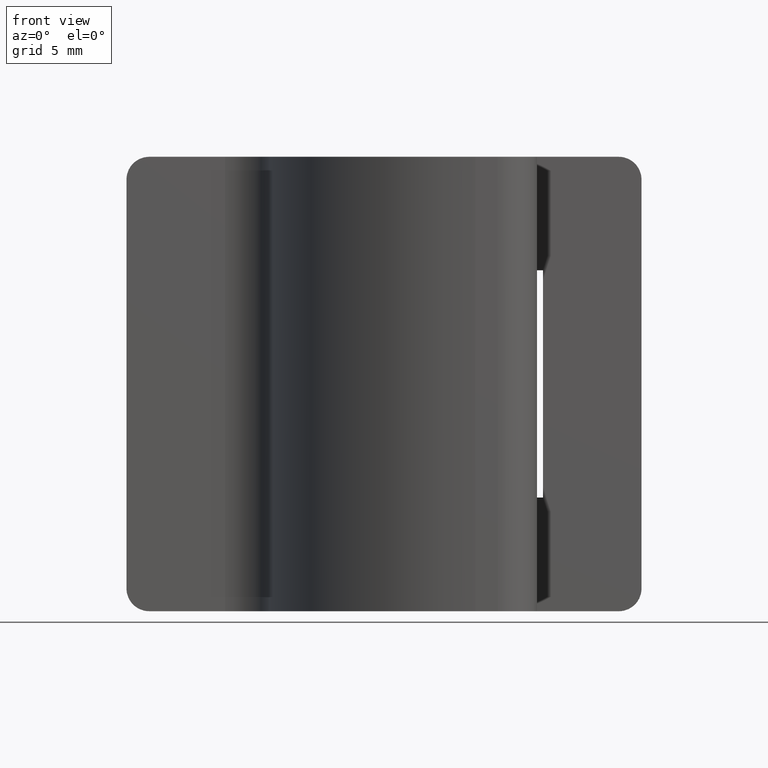
[diagram: clean part render]
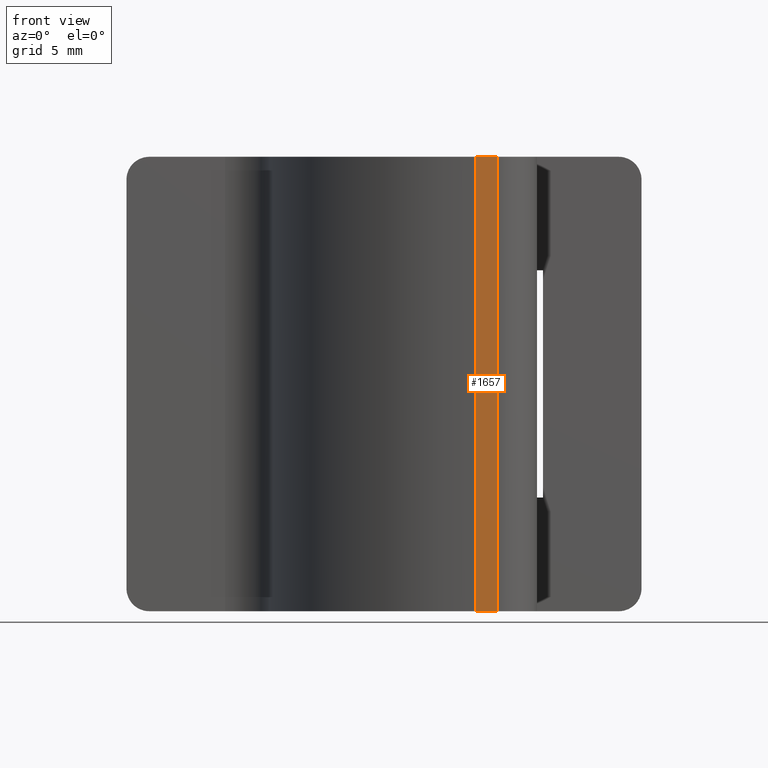
[diagram: same view with one face highlighted and labeled with its STEP entity id]
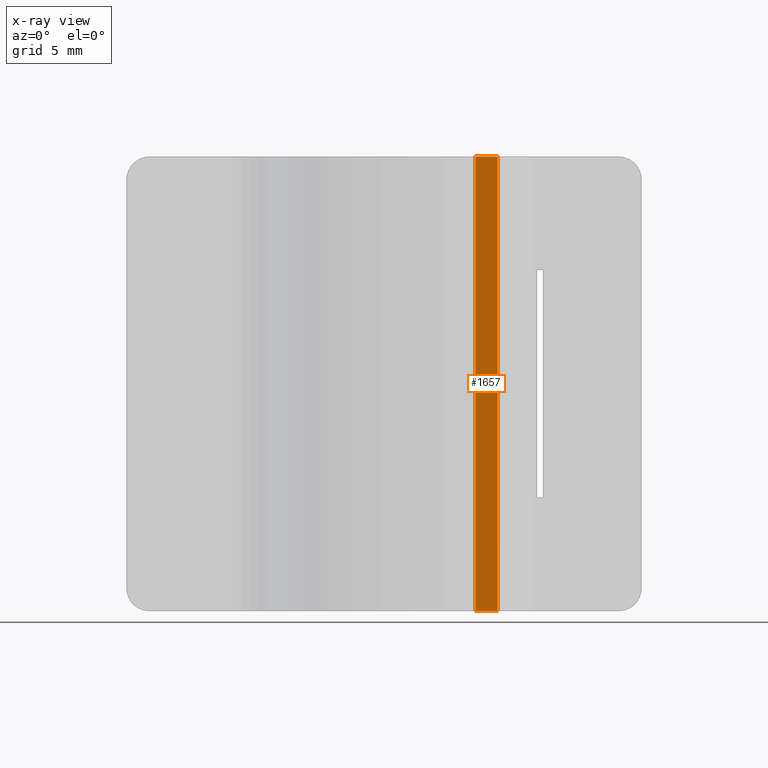
[diagram: x-ray of the same camera — body ghosted, the highlighted face saturated]
A machine part, front view. The second image highlights one B-rep face of the part: STEP entity #1657.
The next image is the same camera in x-ray: the body ghosted, the highlighted face saturated — about 0% of this face is hidden behind the body in this view.
In plain terms, the highlighted face is a freeform B-spline surface patch.
Its self-contained STEP definition (entity closure, byte-faithful):
#1585=CARTESIAN_POINT('',(-3.000000999999900,-13.500000000000000,30.0));
#1586=VERTEX_POINT('',#1585);
#1600=CARTESIAN_POINT('',(-3.000000999999900,-13.500000000000000,0.0));
#1601=VERTEX_POINT('',#1600);
#1602=CARTESIAN_POINT('',(-3.000000999999900,-13.500000000000000,0.0));
#1603=CARTESIAN_POINT('',(-3.000000999999900,-13.500000000000000,30.0));
#1604=QUASI_UNIFORM_CURVE('',1,(#1602,#1603),.UNSPECIFIED.,.F.,.U.);
#1605=EDGE_CURVE('',#1601,#1586,#1604,.T.);
#1630=CARTESIAN_POINT('',(-4.551078249838744,-13.500000000000000,31.498499941854181));
#1631=CARTESIAN_POINT('',(-4.551078249838744,-13.500000000000000,-1.498500746516883));
#1632=CARTESIAN_POINT('',(-2.926210488671443,-13.500000000000000,31.498499941854181));
#1633=CARTESIAN_POINT('',(-2.926210488671443,-13.500000000000000,-1.498500746516883));
#1634=B_SPLINE_SURFACE_WITH_KNOTS('',1,1,((#1630,#1632),(#1631,#1633)),.UNSPECIFIED.,.F.,.F.,.U.,(2,2),(2,2),(0.0,32.997000688371060),(0.041708295834810,0.958291689264029),.UNSPECIFIED.);
#1635=CARTESIAN_POINT('',(-4.477287712094340,-13.500001999999981,30.0));
#1636=VERTEX_POINT('',#1635);
#1637=CARTESIAN_POINT('',(-4.477287712094340,-13.500001999999981,30.0));
#1638=CARTESIAN_POINT('',(-3.000000999999900,-13.500000000000000,30.0));
#1639=QUASI_UNIFORM_CURVE('',1,(#1637,#1638),.UNSPECIFIED.,.F.,.U.);
#1640=EDGE_CURVE('',#1636,#1586,#1639,.T.);
#1641=ORIENTED_EDGE('',*,*,#1640,.F.);
#1642=CARTESIAN_POINT('',(-4.477287712094340,-13.500001999999981,0.0));
#1643=VERTEX_POINT('',#1642);
#1644=CARTESIAN_POINT('',(-4.477287712094340,-13.500001999999981,0.0));
#1645=CARTESIAN_POINT('',(-4.477287712094340,-13.500001999999981,30.0));
#1646=QUASI_UNIFORM_CURVE('',1,(#1644,#1645),.UNSPECIFIED.,.F.,.U.);
#1647=EDGE_CURVE('',#1643,#1636,#1646,.T.);
#1648=ORIENTED_EDGE('',*,*,#1647,.F.);
#1649=CARTESIAN_POINT('',(-4.477287712094340,-13.500001999999981,0.0));
#1650=CARTESIAN_POINT('',(-3.000000999999900,-13.500000000000000,0.0));
#1651=QUASI_UNIFORM_CURVE('',1,(#1649,#1650),.UNSPECIFIED.,.F.,.U.);
#1652=EDGE_CURVE('',#1643,#1601,#1651,.T.);
#1653=ORIENTED_EDGE('',*,*,#1652,.T.);
#1654=ORIENTED_EDGE('',*,*,#1605,.T.);
#1655=EDGE_LOOP('',(#1641,#1648,#1653,#1654));
#1656=FACE_OUTER_BOUND('',#1655,.T.);
#1657=ADVANCED_FACE('',(#1656),#1634,.T.);